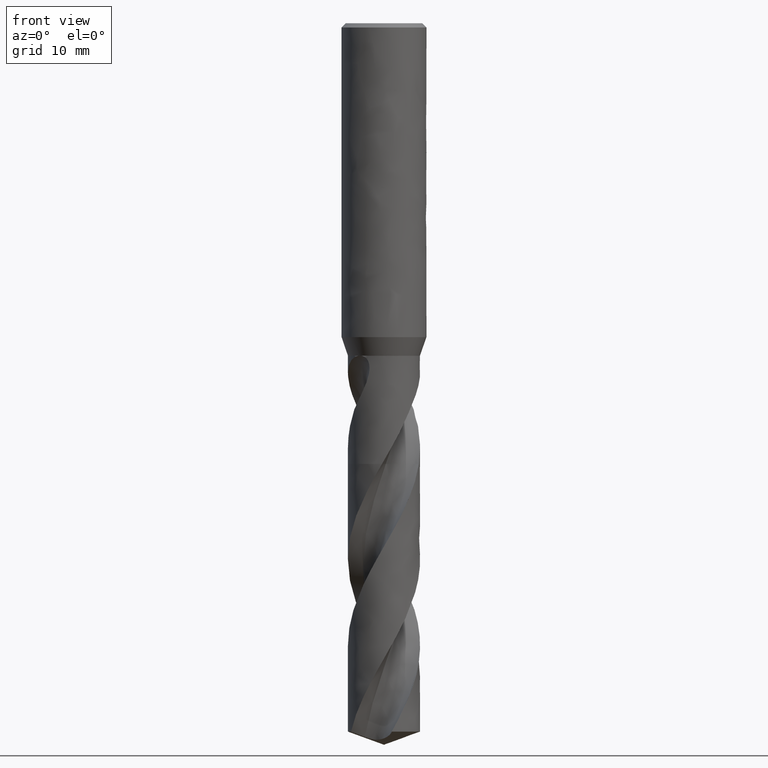
[diagram: clean part render]
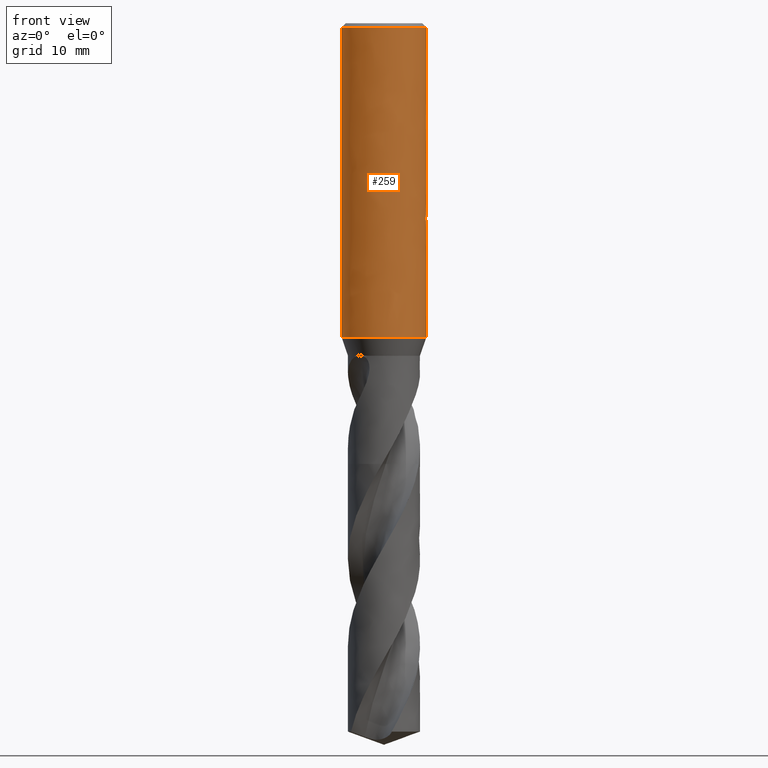
[diagram: same view with one face highlighted and labeled with its STEP entity id]
A machine part, front view. The second image highlights one B-rep face of the part: STEP entity #259.
In plain terms, the highlighted face is a freeform B-spline surface patch.
Its self-contained STEP definition (entity closure, byte-faithful):
#140 = VERTEX_POINT('', #141);
#141 = CARTESIAN_POINT('', (-6., 3.08421173131265E-15, -44.369));
#147 = EDGE_CURVE('', #140, #140, #148, .T.);
#148 = CIRCLE('', #149, 6.);
#149 = AXIS2_PLACEMENT_3D('', #150, #151, #152);
#150 = CARTESIAN_POINT('', (1.6635710449231E-31, 2.71681769156845E-15, -44.369));
#151 = DIRECTION('', (3.74939945665464E-33, 6.12323399573677E-17, -1.));
#152 = DIRECTION('', (-1., 6.12323399573677E-17, 0.));
#208 = VERTEX_POINT('', #209);
#209 = CARTESIAN_POINT('', (-6., 4.04133443718627E-16, -0.600000000000001));
#225 = EDGE_CURVE('', #208, #208, #226, .T.);
#226 = CIRCLE('', #227, 6.);
#227 = AXIS2_PLACEMENT_3D('', #228, #229, #230);
#228 = CARTESIAN_POINT('', (2.24963967399277E-33, 3.67394039744209E-17, -0.600000000000001));
#229 = DIRECTION('', (3.74939945665464E-33, 6.12323399573677E-17, -1.));
#230 = DIRECTION('', (-1., 6.12323399573677E-17, 0.));
#259 = ADVANCED_FACE('', (#260, #271), #466, .T.);
#260 = FACE_OUTER_BOUND('', #261, .T.);
#261 = EDGE_LOOP('', (#262, #268, #269, #270));
#262 = ORIENTED_EDGE('', *, *, #263, .T.);
#263 = EDGE_CURVE('', #140, #208, #264, .T.);
#264 = LINE('', #265, #266);
#265 = CARTESIAN_POINT('', (-6., 3.08421173131265E-15, -44.369));
#266 = VECTOR('', #267, 43.769);
#267 = DIRECTION('', (0., -2.68007828759403E-15, 43.769));
#268 = ORIENTED_EDGE('', *, *, #225, .T.);
#269 = ORIENTED_EDGE('', *, *, #263, .F.);
#270 = ORIENTED_EDGE('', *, *, #147, .F.);
#271 = FACE_BOUND('', #272, .T.);
#272 = EDGE_LOOP('', (#273, #283, #373, #381));
#273 = ORIENTED_EDGE('', *, *, #274, .F.);
#274 = EDGE_CURVE('', #275, #277, #279, .T.);
#275 = VERTEX_POINT('', #276);
#276 = CARTESIAN_POINT('', (4.07921561087423, 4.4, -18.5));
#277 = VERTEX_POINT('', #278);
#278 = CARTESIAN_POINT('', (4.07921561087423, 4.4, -26.5));
#279 = LINE('', #280, #281);
#280 = CARTESIAN_POINT('', (4.07921561087423, 4.4, -18.5));
#281 = VECTOR('', #282, 8.);
#282 = DIRECTION('', (-8.88178419700125E-16, 0., -8.));
#283 = ORIENTED_EDGE('', *, *, #284, .F.);
#284 = EDGE_CURVE('', #285, #275, #287, .T.);
#285 = VERTEX_POINT('', #286);
#286 = CARTESIAN_POINT('', (-4.07921561087423, 4.4, -18.5));
#287 = B_SPLINE_CURVE_WITH_KNOTS('', 3, (#288, #289, #290, #291, #292, #293, #294, #295, #296, #297, #298, #299, #300, #301, #302, #303, #304, #305, #306, #307, #308, #309, #310, #311, #312, #313, #314, #315, #316, #317, #318, #319, #320, #321, #322, #323, #324, #325, #326, #327, #328, #329, #330, #331, #332, #333, #334, #335, #336, #337, #338, #339, #340, #341, #342, #343, #344, #345, #346, #347, #348, #349, #350, #351, #352, #353, #354, #355, #356, #357, #358, #359, #360, #361, #362, #363, #364, #365, #366, #367, #368, #369, #370, #371, #372), .UNSPECIFIED., .F., .U., (4, 3, 3, 3, 3, 3, 3, 3, 3, 3, 3, 3, 3, 3, 3, 3, 3, 3, 3, 3, 3, 3, 3, 3, 3, 3, 3, 3, 4), (0., 0.252528164982003, 0.696302962445138, 1.14029458210511, 1.58454104344383, 2.02908503294033, 2.47397183993456, 2.77031065522298, 3.06676568600972, 3.36334316241506, 3.66004733001567, 3.95687982725979, 4.25383918654579, 4.55092056662182, 4.84668162437949, 5.14244268213717, 5.4395240622132, 5.7364834214992, 6.03331591874332, 6.33002008634393, 6.62659756274927, 6.92305259353602, 7.21939140882443, 7.66427821581866, 8.10882220531516, 8.55306866665389, 8.99706028631385, 9.44083508377699, 9.69336324875898), .UNSPECIFIED.);
#288 = CARTESIAN_POINT('', (-4.07921561087423, 4.4, -18.5));
#289 = CARTESIAN_POINT('', (-4.02845131220746, 4.44706329990831, -18.4521080380756));
#290 = CARTESIAN_POINT('', (-3.97655807735761, 4.4935394565002, -18.4048135575308));
#291 = CARTESIAN_POINT('', (-3.92353945924902, 4.53936538645173, -18.3581807524223));
#292 = CARTESIAN_POINT('', (-3.83036836083079, 4.61989657307895, -18.2762316215456));
#293 = CARTESIAN_POINT('', (-3.73364869199151, 4.69848132293276, -18.1962631991195));
#294 = CARTESIAN_POINT('', (-3.63343184365589, 4.77474324309775, -18.1186585053574));
#295 = CARTESIAN_POINT('', (-3.53316603076135, 4.85104242377677, -18.0410158950207));
#296 = CARTESIAN_POINT('', (-3.42929151463677, 4.92509751242185, -17.9656568893282));
#297 = CARTESIAN_POINT('', (-3.32191613869428, 4.99648608198631, -17.8930113531657));
#298 = CARTESIAN_POINT('', (-3.21447913158613, 5.06791562706045, -17.8203241200216));
#299 = CARTESIAN_POINT('', (-3.10340403823705, 5.13676248497672, -17.7502650484231));
#300 = CARTESIAN_POINT('', (-2.98887732179033, 5.20255825102305, -17.6833107904681));
#301 = CARTESIAN_POINT('', (-2.87427390259879, 5.26839808290843, -17.6163116907895));
#302 = CARTESIAN_POINT('', (-2.75605059652716, 5.33127457957416, -17.5523281029383));
#303 = CARTESIAN_POINT('', (-2.63449928745333, 5.39067838999959, -17.4918783462786));
#304 = CARTESIAN_POINT('', (-2.51285424206408, 5.45012801066231, -17.4313819727829));
#305 = CARTESIAN_POINT('', (-2.38767641856267, 5.5061944341025, -17.3743283657927));
#306 = CARTESIAN_POINT('', (-2.25939288946529, 5.55834001937932, -17.3212646327041));
#307 = CARTESIAN_POINT('', (-2.17394331344712, 5.59307416011022, -17.2859189143078));
#308 = CARTESIAN_POINT('', (-2.08703253413475, 5.62610405559013, -17.2523074484784));
#309 = CARTESIAN_POINT('', (-1.99882607577488, 5.65726915735874, -17.2205936105159));
#310 = CARTESIAN_POINT('', (-1.9105850253974, 5.68844648117739, -17.188867335305));
#311 = CARTESIAN_POINT('', (-1.82096798723843, 5.71778510232651, -17.159012137524));
#312 = CARTESIAN_POINT('', (-1.73017554338986, 5.74512772608718, -17.1311880814419));
#313 = CARTESIAN_POINT('', (-1.63934559929404, 5.77248164324527, -17.1033525331151));
#314 = CARTESIAN_POINT('', (-1.54725106907461, 5.79786399616015, -17.0775232631379));
#315 = CARTESIAN_POINT('', (-1.45412928109494, 5.82112601082148, -17.0538516650431));
#316 = CARTESIAN_POINT('', (-1.360967713592, 5.84439796248974, -17.0301699549766));
#317 = CARTESIAN_POINT('', (-1.26668101162223, 5.86557151484437, -17.008623591565));
#318 = CARTESIAN_POINT('', (-1.17154310133609, 5.88451244893847, -16.9893491570011));
#319 = CARTESIAN_POINT('', (-1.07636404227133, 5.90346157531157, -16.9700663859134));
#320 = CARTESIAN_POINT('', (-0.980227817186131, 5.9201966535508, -16.9530366465752));
#321 = CARTESIAN_POINT('', (-0.883442451457363, 5.93460440425164, -16.9383752129459));
#322 = CARTESIAN_POINT('', (-0.786615721022119, 5.94901831262286, -16.9237075132258));
#323 = CARTESIAN_POINT('', (-0.689026914371757, 5.96111925406702, -16.9113935057503));
#324 = CARTESIAN_POINT('', (-0.59101300861125, 5.97082101755297, -16.9015209195021));
#325 = CARTESIAN_POINT('', (-0.492958828874382, 5.98052676749972, -16.8916442766019));
#326 = CARTESIAN_POINT('', (-0.394361221890405, 5.9878427681628, -16.8841994602402));
#327 = CARTESIAN_POINT('', (-0.295578376007078, 5.99271502940337, -16.8792414111813));
#328 = CARTESIAN_POINT('', (-0.197234551903098, 5.99756563679524, -16.8743053972389));
#329 = CARTESIAN_POINT('', (-0.098587019252555, 6., -16.8718281712446));
#330 = CARTESIAN_POINT('', (1.51596464942229E-15, 6., -16.8718281712446));
#331 = CARTESIAN_POINT('', (0.0985870192525589, 6., -16.8718281712446));
#332 = CARTESIAN_POINT('', (0.197234551903102, 5.99756563679524, -16.8743053972389));
#333 = CARTESIAN_POINT('', (0.295578376007083, 5.99271502940337, -16.8792414111813));
#334 = CARTESIAN_POINT('', (0.394361221890411, 5.9878427681628, -16.8841994602402));
#335 = CARTESIAN_POINT('', (0.492958828874388, 5.98052676749972, -16.8916442766019));
#336 = CARTESIAN_POINT('', (0.591013008611255, 5.97082101755297, -16.9015209195021));
#337 = CARTESIAN_POINT('', (0.689026914371761, 5.96111925406702, -16.9113935057503));
#338 = CARTESIAN_POINT('', (0.786615721022124, 5.94901831262286, -16.9237075132258));
#339 = CARTESIAN_POINT('', (0.883442451457368, 5.93460440425164, -16.9383752129459));
#340 = CARTESIAN_POINT('', (0.980227817186136, 5.9201966535508, -16.9530366465752));
#341 = CARTESIAN_POINT('', (1.07636404227133, 5.90346157531156, -16.9700663859134));
#342 = CARTESIAN_POINT('', (1.1715431013361, 5.88451244893847, -16.9893491570011));
#343 = CARTESIAN_POINT('', (1.26668101162223, 5.86557151484437, -17.008623591565));
#344 = CARTESIAN_POINT('', (1.36096771359201, 5.84439796248974, -17.0301699549766));
#345 = CARTESIAN_POINT('', (1.45412928109495, 5.82112601082147, -17.0538516650431));
#346 = CARTESIAN_POINT('', (1.54725106907462, 5.79786399616015, -17.0775232631379));
#347 = CARTESIAN_POINT('', (1.63934559929405, 5.77248164324527, -17.1033525331151));
#348 = CARTESIAN_POINT('', (1.73017554338987, 5.74512772608718, -17.1311880814419));
#349 = CARTESIAN_POINT('', (1.82096798723844, 5.71778510232651, -17.159012137524));
#350 = CARTESIAN_POINT('', (1.91058502539741, 5.68844648117739, -17.188867335305));
#351 = CARTESIAN_POINT('', (1.99882607577489, 5.65726915735874, -17.2205936105159));
#352 = CARTESIAN_POINT('', (2.08703253413476, 5.62610405559013, -17.2523074484784));
#353 = CARTESIAN_POINT('', (2.17394331344712, 5.59307416011021, -17.2859189143078));
#354 = CARTESIAN_POINT('', (2.2593928894653, 5.55834001937932, -17.3212646327041));
#355 = CARTESIAN_POINT('', (2.38767641856268, 5.50619443410249, -17.3743283657927));
#356 = CARTESIAN_POINT('', (2.51285424206409, 5.45012801066231, -17.4313819727829));
#357 = CARTESIAN_POINT('', (2.63449928745334, 5.39067838999959, -17.4918783462786));
#358 = CARTESIAN_POINT('', (2.75605059652716, 5.33127457957415, -17.5523281029383));
#359 = CARTESIAN_POINT('', (2.8742739025988, 5.26839808290842, -17.6163116907895));
#360 = CARTESIAN_POINT('', (2.98887732179034, 5.20255825102305, -17.6833107904681));
#361 = CARTESIAN_POINT('', (3.10340403823706, 5.13676248497672, -17.7502650484231));
#362 = CARTESIAN_POINT('', (3.21447913158614, 5.06791562706045, -17.8203241200216));
#363 = CARTESIAN_POINT('', (3.32191613869429, 4.99648608198631, -17.8930113531657));
#364 = CARTESIAN_POINT('', (3.42929151463677, 4.92509751242185, -17.9656568893282));
#365 = CARTESIAN_POINT('', (3.53316603076136, 4.85104242377677, -18.0410158950207));
#366 = CARTESIAN_POINT('', (3.6334318436559, 4.77474324309775, -18.1186585053574));
#367 = CARTESIAN_POINT('', (3.73364869199152, 4.69848132293275, -18.1962631991195));
#368 = CARTESIAN_POINT('', (3.83036836083079, 4.61989657307895, -18.2762316215456));
#369 = CARTESIAN_POINT('', (3.92353945924903, 4.53936538645172, -18.3581807524223));
#370 = CARTESIAN_POINT('', (3.97655807735762, 4.4935394565002, -18.4048135575308));
#371 = CARTESIAN_POINT('', (4.02845131220746, 4.44706329990831, -18.4521080380756));
#372 = CARTESIAN_POINT('', (4.07921561087423, 4.4, -18.5));
#373 = ORIENTED_EDGE('', *, *, #374, .T.);
#374 = EDGE_CURVE('', #285, #375, #377, .T.);
#375 = VERTEX_POINT('', #376);
#376 = CARTESIAN_POINT('', (-4.07921561087423, 4.4, -26.5));
#377 = LINE('', #378, #379);
#378 = CARTESIAN_POINT('', (-4.07921561087423, 4.4, -18.5));
#379 = VECTOR('', #380, 8.);
#380 = DIRECTION('', (0., 8.88178419700125E-16, -8.));
#381 = ORIENTED_EDGE('', *, *, #382, .T.);
#382 = EDGE_CURVE('', #375, #277, #383, .T.);
#383 = B_SPLINE_CURVE_WITH_KNOTS('', 3, (#384, #385, #386, #387, #388, #389, #390, #391, #392, #393, #394, #395, #396, #397, #398, #399, #400, #401, #402, #403, #404, #405, #406, #407, #408, #409, #410, #411, #412, #413, #414, #415, #416, #417, #418, #419, #420, #421, #422, #423, #424, #425, #426, #427, #428, #429, #430, #431, #432, #433, #434, #435, #436, #437, #438, #439, #440, #441, #442, #443, #444, #445, #446, #447, #448, #449, #450, #451, #452, #453, #454, #455, #456, #457, #458, #459, #460, #461, #462, #463, #464, #465), .UNSPECIFIED., .F., .U., (4, 3, 3, 3, 3, 3, 3, 3, 3, 3, 3, 3, 3, 3, 3, 3, 3, 3, 3, 3, 3, 3, 3, 3, 3, 3, 3, 4), (0., 0.443342399663823, 0.886545636833212, 1.32958786504548, 1.77244318478925, 2.21508166617877, 2.65746991921297, 3.0995725400833, 3.5413547763039, 3.83602657676747, 4.13058610128575, 4.4250318714497, 4.62151501666331, 4.84649677051964, 5.14225782827732, 5.43933920835335, 5.73629856763935, 6.03313106488347, 6.32983523248408, 6.62641270888942, 6.92286773967616, 7.21920655496458, 7.66409336195881, 8.10863735145531, 8.55288381279404, 8.99687543245401, 9.44065022991714, 9.69317839489914), .UNSPECIFIED.);
#384 = CARTESIAN_POINT('', (-4.07921561087423, 4.4, -26.5));
#385 = CARTESIAN_POINT('', (-3.99009301344126, 4.48262506607505, -26.5840798780828));
#386 = CARTESIAN_POINT('', (-3.89746999004795, 4.56345861274838, -26.6663366927777));
#387 = CARTESIAN_POINT('', (-3.80137376549427, 4.64215009397717, -26.7464137258401));
#388 = CARTESIAN_POINT('', (-3.70530770496353, 4.72081687442654, -26.8264656232067));
#389 = CARTESIAN_POINT('', (-3.60567507499127, 4.79742012425749, -26.9044176565604));
#390 = CARTESIAN_POINT('', (-3.50254877718792, 4.87156566859361, -26.9798687106327));
#391 = CARTESIAN_POINT('', (-3.39945994359121, 4.94568427698756, -27.0552923544912));
#392 = CARTESIAN_POINT('', (-3.29276254731489, 5.01742999477435, -27.1283013273252));
#393 = CARTESIAN_POINT('', (-3.18259405082664, 5.08636364288317, -27.1984487172653));
#394 = CARTESIAN_POINT('', (-3.07247203167993, 5.15526820960477, -27.2685665137707));
#395 = CARTESIAN_POINT('', (-2.95873778715688, 5.22145138140552, -27.3359149986855));
#396 = CARTESIAN_POINT('', (-2.84161670673264, 5.28443133099668, -27.4000038609985));
#397 = CARTESIAN_POINT('', (-2.72455297312393, 5.34738044327368, -27.4640613430326));
#398 = CARTESIAN_POINT('', (-2.60392993007725, 5.40722166596681, -27.5249562136497));
#399 = CARTESIAN_POINT('', (-2.48008787968619, 5.4634388537839, -27.5821632395845));
#400 = CARTESIAN_POINT('', (-2.35631583855527, 5.51962426141233, -27.6393379257643));
#401 = CARTESIAN_POINT('', (-2.22911594889545, 5.57228333564817, -27.6929241890138));
#402 = CARTESIAN_POINT('', (-2.09897135694727, 5.62088242562654, -27.7423789822675));
#403 = CARTESIAN_POINT('', (-1.96891079408702, 5.66945013714235, -27.7918018445657));
#404 = CARTESIAN_POINT('', (-1.83565628537042, 5.71405431098098, -27.8371913816213));
#405 = CARTESIAN_POINT('', (-1.6998574866198, 5.75417105456425, -27.8780144764737));
#406 = CARTESIAN_POINT('', (-1.56415709907174, 5.79425872618949, -27.9188079874865));
#407 = CARTESIAN_POINT('', (-1.42562096784116, 5.82994915689483, -27.9551268336306));
#408 = CARTESIAN_POINT('', (-1.28507687616643, 5.86076594161075, -27.9864862215852));
#409 = CARTESIAN_POINT('', (-1.19133299707205, 5.88132094969443, -28.0074031497737));
#410 = CARTESIAN_POINT('', (-1.09657649444595, 5.89973707876045, -28.026143538861));
#411 = CARTESIAN_POINT('', (-1.0010958872433, 5.91589443994267, -28.042585389051));
#412 = CARTESIAN_POINT('', (-0.905651660092685, 5.93204564484188, -28.0590209745618));
#413 = CARTESIAN_POINT('', (-0.809376785197185, 5.94595753641382, -28.0731778182757));
#414 = CARTESIAN_POINT('', (-0.712589485964344, 5.95753440816695, -28.0849585285592));
#415 = CARTESIAN_POINT('', (-0.615839564496658, 5.96910680911041, -28.0967346893137));
#416 = CARTESIAN_POINT('', (-0.518464684260805, 5.97835919784588, -28.1061499884935));
#417 = CARTESIAN_POINT('', (-0.420806179111675, 5.98522532237689, -28.1131370075773));
#418 = CARTESIAN_POINT('', (-0.355638830170383, 5.98980707521555, -28.1177994331387));
#419 = CARTESIAN_POINT('', (-0.290302106735286, 5.99333029033027, -28.1213846828865));
#420 = CARTESIAN_POINT('', (-0.224901311003015, 5.99578346843089, -28.123881055058));
#421 = CARTESIAN_POINT('', (-0.150014553100962, 5.99859246413889, -28.1267395098573));
#422 = CARTESIAN_POINT('', (-0.0749939179521102, 6., -28.1281718287554));
#423 = CARTESIAN_POINT('', (6.27786229722166E-16, 6., -28.1281718287554));
#424 = CARTESIAN_POINT('', (0.0985870192525577, 6., -28.1281718287554));
#425 = CARTESIAN_POINT('', (0.197234551903101, 5.99756563679524, -28.1256946027611));
#426 = CARTESIAN_POINT('', (0.295578376007082, 5.99271502940337, -28.1207585888187));
#427 = CARTESIAN_POINT('', (0.394361221890409, 5.9878427681628, -28.1158005397598));
#428 = CARTESIAN_POINT('', (0.492958828874386, 5.98052676749973, -28.1083557233981));
#429 = CARTESIAN_POINT('', (0.591013008611253, 5.97082101755297, -28.0984790804979));
#430 = CARTESIAN_POINT('', (0.68902691437176, 5.96111925406702, -28.0886064942497));
#431 = CARTESIAN_POINT('', (0.786615721022123, 5.94901831262286, -28.0762924867742));
#432 = CARTESIAN_POINT('', (0.883442451457367, 5.93460440425164, -28.0616247870541));
#433 = CARTESIAN_POINT('', (0.980227817186135, 5.9201966535508, -28.0469633534248));
#434 = CARTESIAN_POINT('', (1.07636404227133, 5.90346157531157, -28.0299336140866));
#435 = CARTESIAN_POINT('', (1.17154310133609, 5.88451244893847, -28.0106508429989));
#436 = CARTESIAN_POINT('', (1.26668101162223, 5.86557151484437, -27.991376408435));
#437 = CARTESIAN_POINT('', (1.360967713592, 5.84439796248974, -27.9698300450234));
#438 = CARTESIAN_POINT('', (1.45412928109495, 5.82112601082147, -27.9461483349569));
#439 = CARTESIAN_POINT('', (1.54725106907462, 5.79786399616015, -27.9224767368621));
#440 = CARTESIAN_POINT('', (1.63934559929405, 5.77248164324527, -27.8966474668849));
#441 = CARTESIAN_POINT('', (1.73017554338986, 5.74512772608718, -27.8688119185581));
#442 = CARTESIAN_POINT('', (1.82096798723844, 5.71778510232651, -27.840987862476));
#443 = CARTESIAN_POINT('', (1.91058502539741, 5.68844648117739, -27.811132664695));
#444 = CARTESIAN_POINT('', (1.99882607577489, 5.65726915735874, -27.7794063894841));
#445 = CARTESIAN_POINT('', (2.08703253413476, 5.62610405559013, -27.7476925515216));
#446 = CARTESIAN_POINT('', (2.17394331344712, 5.59307416011022, -27.7140810856922));
#447 = CARTESIAN_POINT('', (2.2593928894653, 5.55834001937932, -27.6787353672959));
#448 = CARTESIAN_POINT('', (2.38767641856268, 5.5061944341025, -27.6256716342073));
#449 = CARTESIAN_POINT('', (2.51285424206409, 5.45012801066231, -27.5686180272171));
#450 = CARTESIAN_POINT('', (2.63449928745334, 5.39067838999959, -27.5081216537214));
#451 = CARTESIAN_POINT('', (2.75605059652716, 5.33127457957415, -27.4476718970617));
#452 = CARTESIAN_POINT('', (2.8742739025988, 5.26839808290842, -27.3836883092105));
#453 = CARTESIAN_POINT('', (2.98887732179034, 5.20255825102305, -27.3166892095319));
#454 = CARTESIAN_POINT('', (3.10340403823706, 5.13676248497672, -27.2497349515769));
#455 = CARTESIAN_POINT('', (3.21447913158614, 5.06791562706045, -27.1796758799784));
#456 = CARTESIAN_POINT('', (3.32191613869429, 4.99648608198631, -27.1069886468343));
#457 = CARTESIAN_POINT('', (3.42929151463678, 4.92509751242185, -27.0343431106718));
#458 = CARTESIAN_POINT('', (3.53316603076136, 4.85104242377677, -26.9589841049793));
#459 = CARTESIAN_POINT('', (3.6334318436559, 4.77474324309775, -26.8813414946426));
#460 = CARTESIAN_POINT('', (3.73364869199152, 4.69848132293275, -26.8037368008805));
#461 = CARTESIAN_POINT('', (3.8303683608308, 4.61989657307895, -26.7237683784544));
#462 = CARTESIAN_POINT('', (3.92353945924903, 4.53936538645172, -26.6418192475777));
#463 = CARTESIAN_POINT('', (3.97655807735762, 4.4935394565002, -26.5951864424692));
#464 = CARTESIAN_POINT('', (4.02845131220746, 4.44706329990831, -26.5478919619244));
#465 = CARTESIAN_POINT('', (4.07921561087423, 4.4, -26.5));
#466 = (
   BOUNDED_SURFACE ()
   B_SPLINE_SURFACE (1, 2, ((#467, #468, #469, #470, #471, #472, #473, #474, #475), (#476, #477, #478, #479, #480, #481, #482, #483, #484)), .UNSPECIFIED., .F., .T., .U.)
   B_SPLINE_SURFACE_WITH_KNOTS ((2, 2), (3, 2, 2, 2, 3), (0., 1.), (0., 9.42477796076938, 18.8495559215388, 28.2743338823081, 37.6991118430775), .UNSPECIFIED.)
   GEOMETRIC_REPRESENTATION_ITEM ()
   RATIONAL_B_SPLINE_SURFACE (((1., 0.707106781186548, 1., 0.707106781186548, 1., 0.707106781186548, 1., 0.707106781186548, 1.), (1., 0.707106781186548, 1., 0.707106781186548, 1., 0.707106781186548, 1., 0.707106781186548, 1.)))
   REPRESENTATION_ITEM ('')
   SURFACE ()
);
#467 = CARTESIAN_POINT('', (-6., 3.08421173131265E-15, -44.369));
#468 = CARTESIAN_POINT('', (-6., 6., -44.369));
#469 = CARTESIAN_POINT('', (1.4791141972894E-31, 6., -44.369));
#470 = CARTESIAN_POINT('', (6., 6., -44.369));
#471 = CARTESIAN_POINT('', (6., 3.08421173131265E-15, -44.369));
#472 = CARTESIAN_POINT('', (6., -6., -44.369));
#473 = CARTESIAN_POINT('', (7.34788079488412E-16, -6., -44.369));
#474 = CARTESIAN_POINT('', (-6., -6., -44.369));
#475 = CARTESIAN_POINT('', (-6., 3.08421173131265E-15, -44.369));
#476 = CARTESIAN_POINT('', (-6., 4.04133443718627E-16, -0.600000000000001));
#477 = CARTESIAN_POINT('', (-6., 6., -0.600000000000001));
#478 = CARTESIAN_POINT('', (0., 6., -0.600000000000001));
#479 = CARTESIAN_POINT('', (6., 6., -0.600000000000001));
#480 = CARTESIAN_POINT('', (6., 4.04133443718627E-16, -0.600000000000001));
#481 = CARTESIAN_POINT('', (6., -6., -0.600000000000002));
#482 = CARTESIAN_POINT('', (7.34788079488412E-16, -6., -0.600000000000002));
#483 = CARTESIAN_POINT('', (-6., -6., -0.600000000000002));
#484 = CARTESIAN_POINT('', (-6., 4.04133443718627E-16, -0.600000000000001));